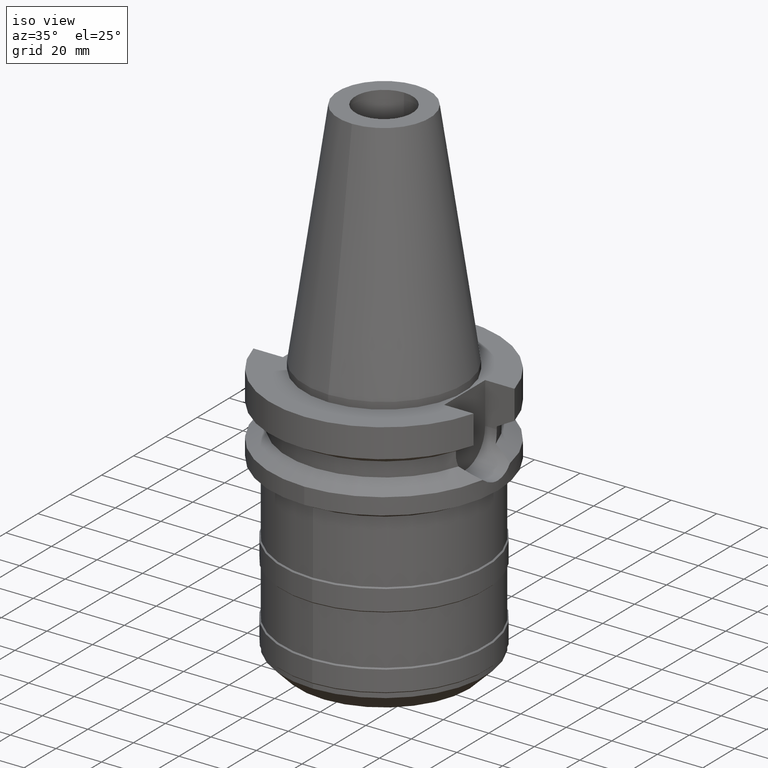
[diagram: clean part render]
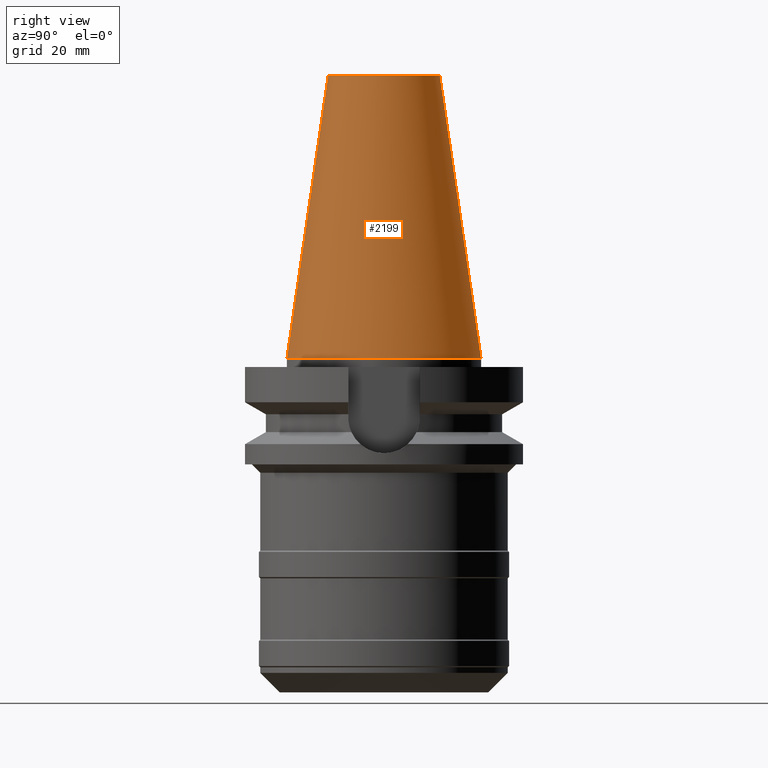
[diagram: tour spotlight — one face highlighted and labeled with its STEP entity id]
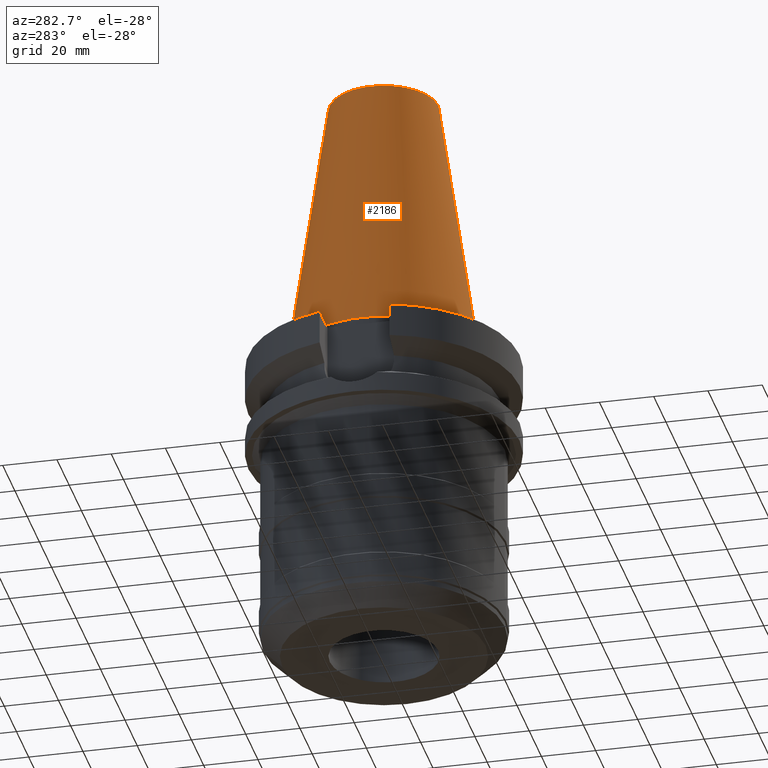
[diagram: tour spotlight — one face highlighted and labeled with its STEP entity id]
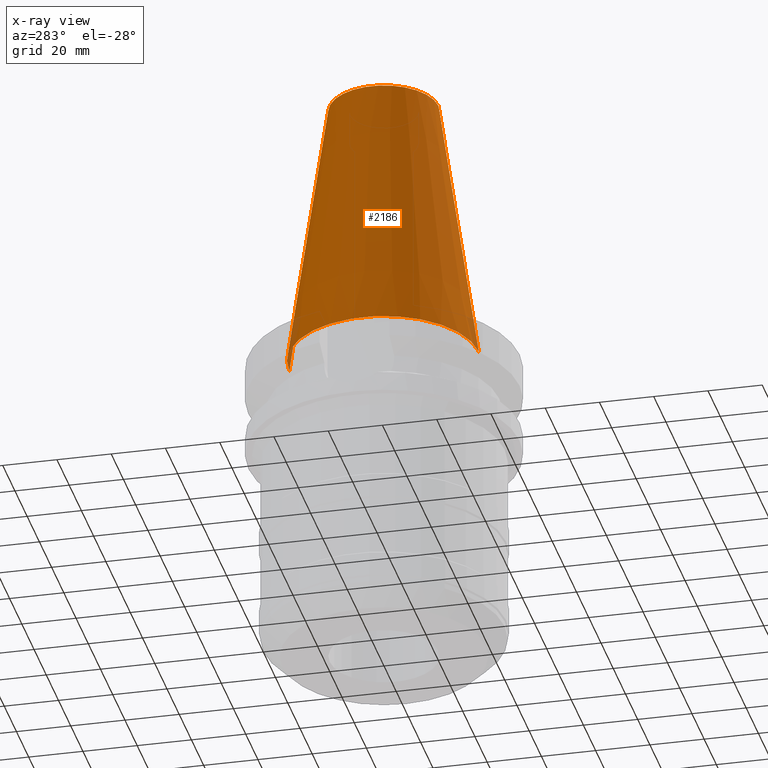
[diagram: x-ray of the same camera — body ghosted, this tour face saturated]
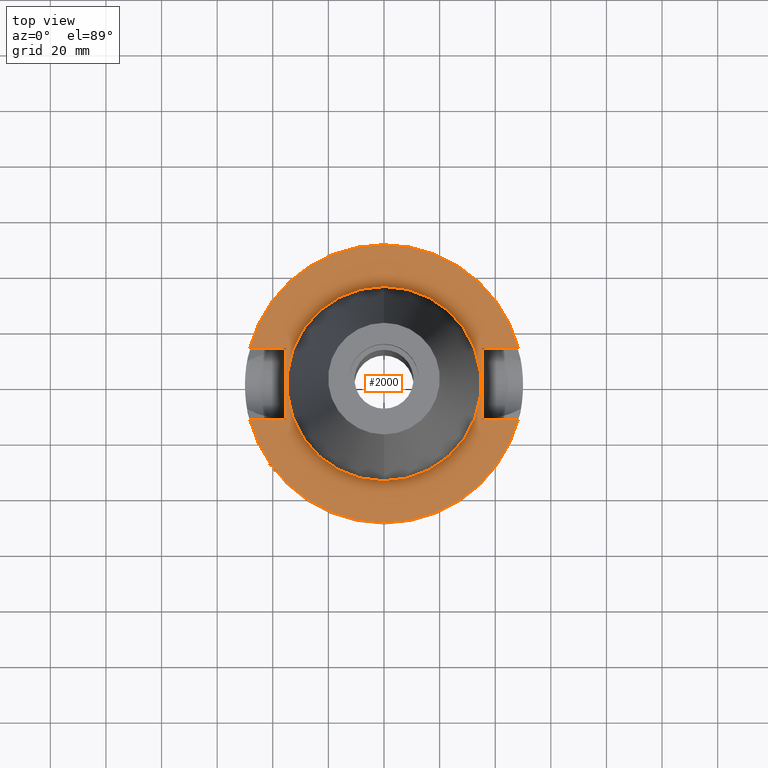
[diagram: tour spotlight — one face highlighted and labeled with its STEP entity id]
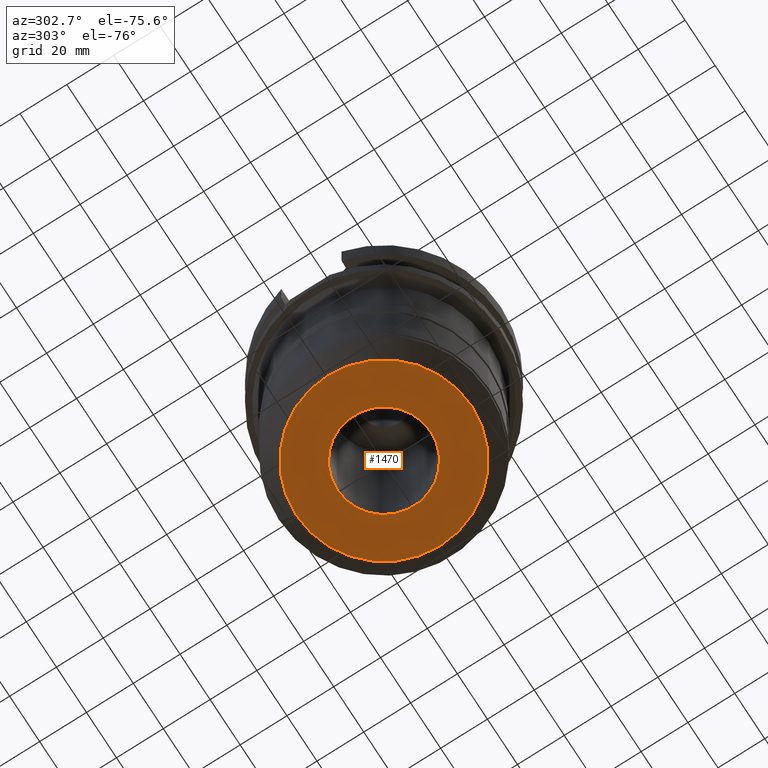
[diagram: tour spotlight — one face highlighted and labeled with its STEP entity id]
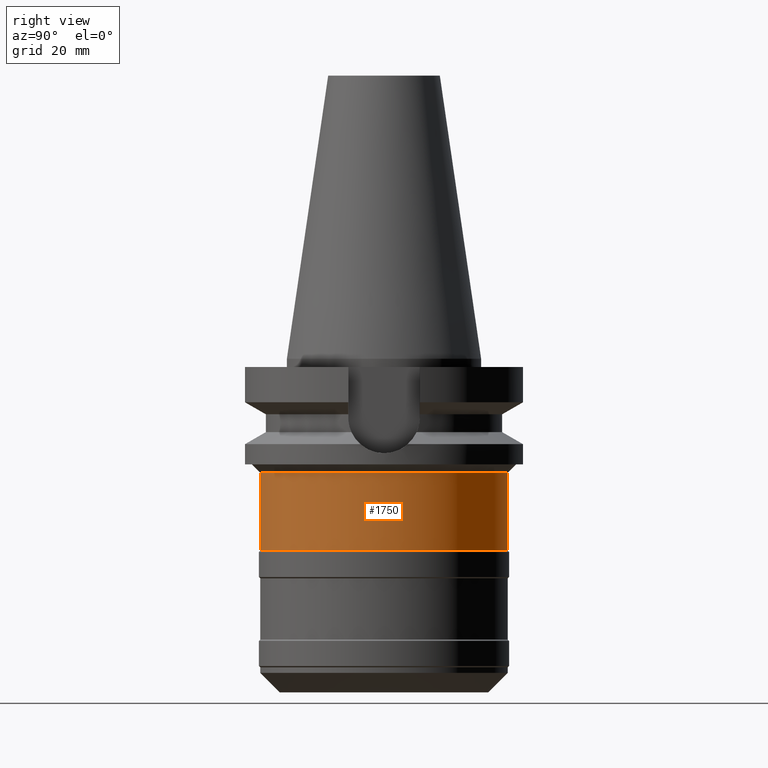
[diagram: tour spotlight — one face highlighted and labeled with its STEP entity id]
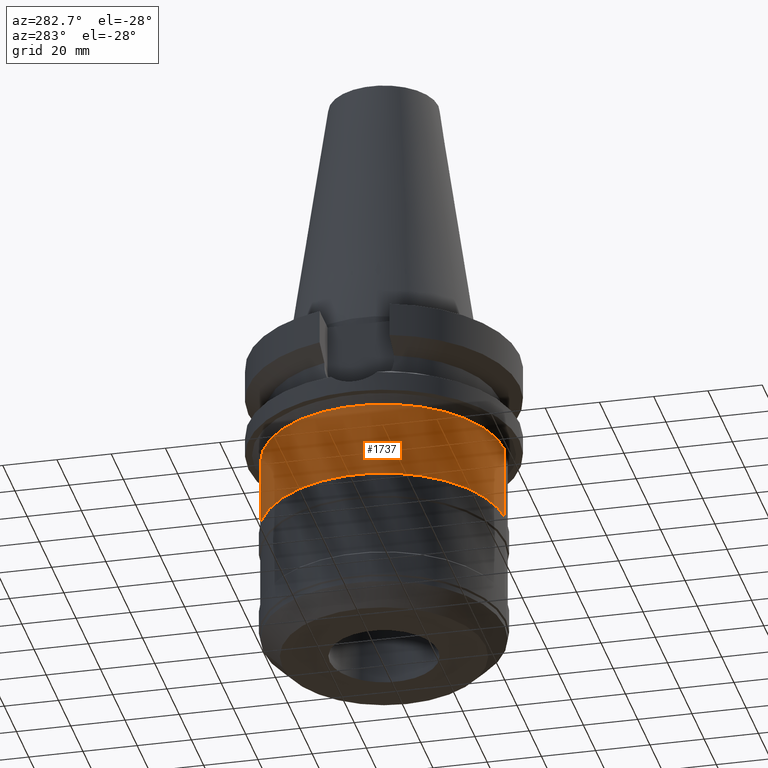
[diagram: tour spotlight — one face highlighted and labeled with its STEP entity id]
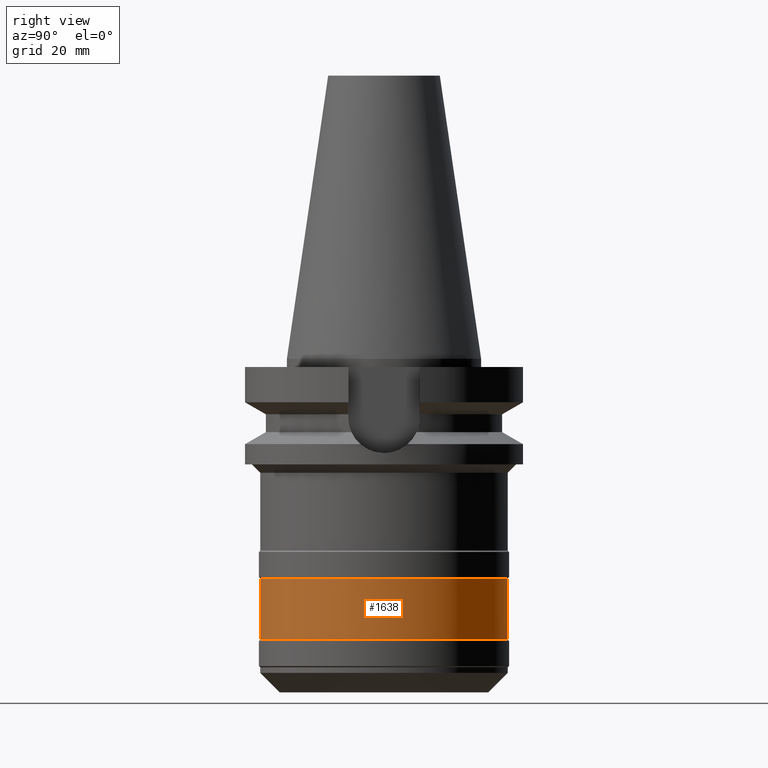
[diagram: tour spotlight — one face highlighted and labeled with its STEP entity id]
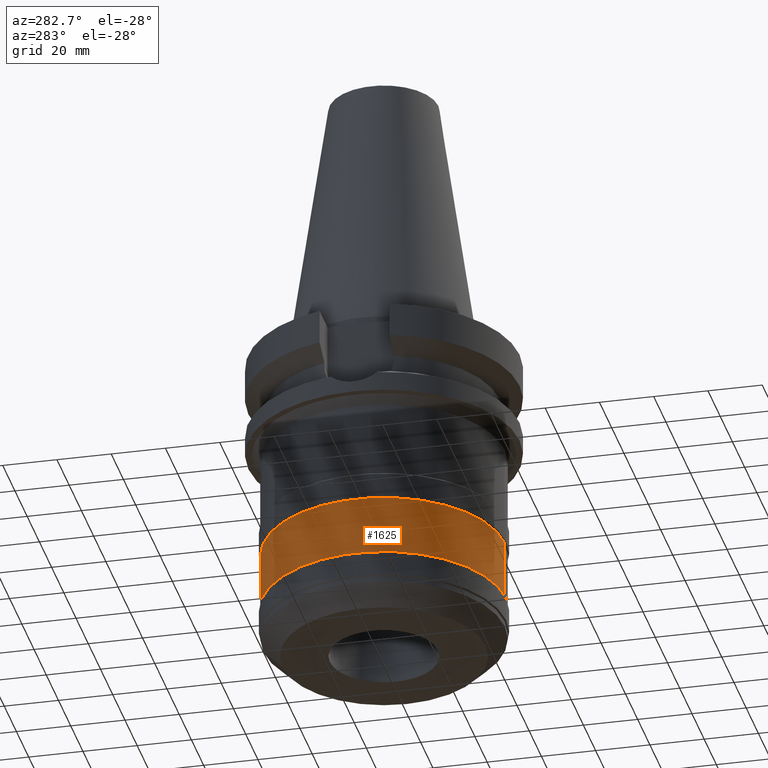
[diagram: tour spotlight — one face highlighted and labeled with its STEP entity id]
A machine part: a face-by-face anatomy tour. The part has 58 B-rep faces; the first image is the clean iso view, then the 8 largest visible faces are spotlighted one at a time (largest first), each with its STEP entity span.

Face 1 — right view, entity #2199. In plain terms, the highlighted conical surface has half-angle 8.297 deg.
Definition (entity closure, byte-faithful):
#1078=DIRECTION('',(0.E0,-1.443043893539E-1,-9.895333461856E-1));
#1079=VECTOR('',#1078,1.028767755957E2);
#1080=CARTESIAN_POINT('',(0.E0,-2.007942971896E1,1.018E2));
#1081=LINE('',#1080,#1079);
#1093=DIRECTION('',(0.E0,1.443043893539E-1,-9.895333461856E-1));
#1094=VECTOR('',#1093,1.028767755957E2);
#1095=CARTESIAN_POINT('',(0.E0,2.007942971896E1,1.018E2));
#1096=LINE('',#1095,#1094);
#1100=CARTESIAN_POINT('',(0.E0,1.847992019913E-14,3.979039320257E-13));
#1101=DIRECTION('',(0.E0,0.E0,-1.E0));
#1102=DIRECTION('',(0.E0,1.E0,0.E0));
#1103=AXIS2_PLACEMENT_3D('',#1100,#1101,#1102);
#1116=CARTESIAN_POINT('',(0.E0,1.847992019913E-14,1.018E2));
#1117=DIRECTION('',(0.E0,0.E0,-1.E0));
#1118=DIRECTION('',(0.E0,1.E0,0.E0));
#1119=AXIS2_PLACEMENT_3D('',#1116,#1117,#1118);
#1293=CARTESIAN_POINT('',(0.E0,3.4925E1,4.902744876745E-13));
#1294=VERTEX_POINT('',#1293);
#1295=CARTESIAN_POINT('',(0.E0,-3.4925E1,4.902744876745E-13));
#1296=VERTEX_POINT('',#1295);
#1297=CARTESIAN_POINT('',(0.E0,2.007942971896E1,1.018E2));
#1298=VERTEX_POINT('',#1297);
#1299=CARTESIAN_POINT('',(0.E0,-2.007942971896E1,1.018E2));
#1300=VERTEX_POINT('',#1299);
#2187=CARTESIAN_POINT('',(0.E0,1.847992019913E-14,5.09E1));
#2188=DIRECTION('',(0.E0,0.E0,-1.E0));
#2189=DIRECTION('',(0.E0,-1.E0,0.E0));
#2190=AXIS2_PLACEMENT_3D('',#2187,#2188,#2189);
#2191=CONICAL_SURFACE('',#2190,2.750221485948E1,8.297E0);
#2192=ORIENTED_EDGE('',*,*,#2177,.T.);
#2193=ORIENTED_EDGE('',*,*,#2154,.T.);
#2194=ORIENTED_EDGE('',*,*,#2181,.F.);
#2196=ORIENTED_EDGE('',*,*,#2195,.F.);
#2197=EDGE_LOOP('',(#2192,#2193,#2194,#2196));
#2198=FACE_OUTER_BOUND('',#2197,.F.);
#1104=CIRCLE('',#1103,3.4925E1);
#1120=CIRCLE('',#1119,2.007942971896E1);
#2154=EDGE_CURVE('',#1294,#1296,#1104,.T.);
#2177=EDGE_CURVE('',#1298,#1294,#1096,.T.);
#2181=EDGE_CURVE('',#1300,#1296,#1081,.T.);
#2195=EDGE_CURVE('',#1298,#1300,#1120,.T.);
#2199=ADVANCED_FACE('',(#2198),#2191,.T.);

Face 2 — auxiliary view, entity #2186. An x-ray twin of the same camera follows (body ghosted, this face saturated) — the face is partly hidden behind the body. In plain terms, the highlighted conical surface has half-angle 8.297 deg.
Definition (entity closure, byte-faithful):
#1078=DIRECTION('',(0.E0,-1.443043893539E-1,-9.895333461856E-1));
#1079=VECTOR('',#1078,1.028767755957E2);
#1080=CARTESIAN_POINT('',(0.E0,-2.007942971896E1,1.018E2));
#1081=LINE('',#1080,#1079);
#1085=CARTESIAN_POINT('',(0.E0,1.847992019913E-14,3.979039320257E-13));
#1086=DIRECTION('',(0.E0,0.E0,-1.E0));
#1087=DIRECTION('',(0.E0,-1.E0,0.E0));
#1088=AXIS2_PLACEMENT_3D('',#1085,#1086,#1087);
#1093=DIRECTION('',(0.E0,1.443043893539E-1,-9.895333461856E-1));
#1094=VECTOR('',#1093,1.028767755957E2);
#1095=CARTESIAN_POINT('',(0.E0,2.007942971896E1,1.018E2));
#1096=LINE('',#1095,#1094);
#1108=CARTESIAN_POINT('',(0.E0,1.847992019913E-14,1.018E2));
#1109=DIRECTION('',(0.E0,0.E0,-1.E0));
#1110=DIRECTION('',(0.E0,-1.E0,0.E0));
#1111=AXIS2_PLACEMENT_3D('',#1108,#1109,#1110);
#1293=CARTESIAN_POINT('',(0.E0,3.4925E1,4.902744876745E-13));
#1294=VERTEX_POINT('',#1293);
#1295=CARTESIAN_POINT('',(0.E0,-3.4925E1,4.902744876745E-13));
#1296=VERTEX_POINT('',#1295);
#1297=CARTESIAN_POINT('',(0.E0,2.007942971896E1,1.018E2));
#1298=VERTEX_POINT('',#1297);
#1299=CARTESIAN_POINT('',(0.E0,-2.007942971896E1,1.018E2));
#1300=VERTEX_POINT('',#1299);
#2172=CARTESIAN_POINT('',(0.E0,1.847992019913E-14,5.09E1));
#2173=DIRECTION('',(0.E0,0.E0,-1.E0));
#2174=DIRECTION('',(0.E0,-1.E0,0.E0));
#2175=AXIS2_PLACEMENT_3D('',#2172,#2173,#2174);
#2176=CONICAL_SURFACE('',#2175,2.750221485948E1,8.297E0);
#2178=ORIENTED_EDGE('',*,*,#2177,.F.);
#2180=ORIENTED_EDGE('',*,*,#2179,.F.);
#2182=ORIENTED_EDGE('',*,*,#2181,.T.);
#2183=ORIENTED_EDGE('',*,*,#2165,.T.);
#2184=EDGE_LOOP('',(#2178,#2180,#2182,#2183));
#2185=FACE_OUTER_BOUND('',#2184,.F.);
#1089=CIRCLE('',#1088,3.4925E1);
#1112=CIRCLE('',#1111,2.007942971896E1);
#2165=EDGE_CURVE('',#1296,#1294,#1089,.T.);
#2177=EDGE_CURVE('',#1298,#1294,#1096,.T.);
#2179=EDGE_CURVE('',#1300,#1298,#1112,.T.);
#2181=EDGE_CURVE('',#1300,#1296,#1081,.T.);
#2186=ADVANCED_FACE('',(#2185),#2176,.T.);

Face 3 — top view, entity #2000. In plain terms, the highlighted planar face has unit normal (0, 0, -1).
Definition (entity closure, byte-faithful):
#748=DIRECTION('',(1.E0,0.E0,0.E0));
#749=VECTOR('',#748,1.292057015392E1);
#750=CARTESIAN_POINT('',(3.54E1,1.285E1,-3.E0));
#751=LINE('',#750,#749);
#795=DIRECTION('',(0.E0,1.E0,0.E0));
#796=VECTOR('',#795,2.57E1);
#797=CARTESIAN_POINT('',(-3.54E1,-1.285E1,-3.E0));
#798=LINE('',#797,#796);
#802=DIRECTION('',(-1.E0,0.E0,0.E0));
#803=VECTOR('',#802,1.292057015392E1);
#804=CARTESIAN_POINT('',(-3.54E1,1.285E1,-3.E0));
#805=LINE('',#804,#803);
#809=CARTESIAN_POINT('',(0.E0,2.607150570705E-14,-3.E0));
#810=DIRECTION('',(0.E0,0.E0,-1.E0));
#811=DIRECTION('',(-9.664114030784E-1,2.57E-1,0.E0));
#812=AXIS2_PLACEMENT_3D('',#809,#810,#811);
#817=CARTESIAN_POINT('',(0.E0,2.607150570705E-14,-3.E0));
#818=DIRECTION('',(0.E0,0.E0,-1.E0));
#819=DIRECTION('',(0.E0,1.E0,0.E0));
#820=AXIS2_PLACEMENT_3D('',#817,#818,#819);
#825=DIRECTION('',(0.E0,-1.E0,0.E0));
#826=VECTOR('',#825,2.57E1);
#827=CARTESIAN_POINT('',(3.54E1,1.285E1,-3.E0));
#828=LINE('',#827,#826);
#832=DIRECTION('',(1.E0,0.E0,0.E0));
#833=VECTOR('',#832,1.292057015392E1);
#834=CARTESIAN_POINT('',(3.54E1,-1.285E1,-3.E0));
#835=LINE('',#834,#833);
#839=CARTESIAN_POINT('',(0.E0,2.607150570705E-14,-3.E0));
#840=DIRECTION('',(0.E0,0.E0,-1.E0));
#841=DIRECTION('',(9.664114030784E-1,-2.57E-1,0.E0));
#842=AXIS2_PLACEMENT_3D('',#839,#840,#841);
#847=CARTESIAN_POINT('',(0.E0,2.607150570705E-14,-3.E0));
#848=DIRECTION('',(0.E0,0.E0,-1.E0));
#849=DIRECTION('',(0.E0,-1.E0,0.E0));
#850=AXIS2_PLACEMENT_3D('',#847,#848,#849);
#855=CARTESIAN_POINT('',(0.E0,2.607150570705E-14,-3.E0));
#856=DIRECTION('',(0.E0,0.E0,1.E0));
#857=DIRECTION('',(0.E0,-1.E0,0.E0));
#858=AXIS2_PLACEMENT_3D('',#855,#856,#857);
#863=CARTESIAN_POINT('',(0.E0,2.607150570705E-14,-3.E0));
#864=DIRECTION('',(0.E0,0.E0,1.E0));
#865=DIRECTION('',(0.E0,1.E0,0.E0));
#866=AXIS2_PLACEMENT_3D('',#863,#864,#865);
#901=DIRECTION('',(-1.E0,0.E0,0.E0));
#902=VECTOR('',#901,1.292057015392E1);
#903=CARTESIAN_POINT('',(-3.54E1,-1.285E1,-3.E0));
#904=LINE('',#903,#902);
#1267=CARTESIAN_POINT('',(-3.54E1,-1.285E1,-3.E0));
#1268=VERTEX_POINT('',#1267);
#1269=CARTESIAN_POINT('',(-4.832057015392E1,-1.285E1,-3.E0));
#1270=VERTEX_POINT('',#1269);
#1273=CARTESIAN_POINT('',(-3.54E1,1.285E1,-3.E0));
#1274=VERTEX_POINT('',#1273);
#1275=CARTESIAN_POINT('',(-4.832057015392E1,1.285E1,-3.E0));
#1276=VERTEX_POINT('',#1275);
#1277=CARTESIAN_POINT('',(-1.065814103640E-14,5.E1,-3.E0));
#1278=CARTESIAN_POINT('',(4.832057015392E1,1.285E1,-3.E0));
#1279=VERTEX_POINT('',#1277);
#1280=VERTEX_POINT('',#1278);
#1281=CARTESIAN_POINT('',(3.54E1,1.285E1,-3.E0));
#1282=VERTEX_POINT('',#1281);
#1283=CARTESIAN_POINT('',(3.54E1,-1.285E1,-3.E0));
#1284=VERTEX_POINT('',#1283);
#1285=CARTESIAN_POINT('',(4.832057015392E1,-1.285E1,-3.E0));
#1286=VERTEX_POINT('',#1285);
#1287=CARTESIAN_POINT('',(1.065814103640E-14,-5.E1,-3.E0));
#1288=VERTEX_POINT('',#1287);
#1289=CARTESIAN_POINT('',(0.E0,-3.4925E1,-3.E0));
#1290=CARTESIAN_POINT('',(0.E0,3.4925E1,-3.E0));
#1291=VERTEX_POINT('',#1289);
#1292=VERTEX_POINT('',#1290);
#1969=CARTESIAN_POINT('',(0.E0,1.187907395173E-14,-3.E0));
#1970=DIRECTION('',(0.E0,0.E0,-1.E0));
#1971=DIRECTION('',(0.E0,-1.E0,0.E0));
#1972=AXIS2_PLACEMENT_3D('',#1969,#1970,#1971);
#1973=PLANE('',#1972);
#1975=ORIENTED_EDGE('',*,*,#1974,.T.);
#1977=ORIENTED_EDGE('',*,*,#1976,.T.);
#1979=ORIENTED_EDGE('',*,*,#1978,.T.);
#1981=ORIENTED_EDGE('',*,*,#1980,.T.);
#1982=ORIENTED_EDGE('',*,*,#1945,.F.);
#1983=ORIENTED_EDGE('',*,*,#1959,.T.);
#1985=ORIENTED_EDGE('',*,*,#1984,.T.);
#1987=ORIENTED_EDGE('',*,*,#1986,.T.);
#1989=ORIENTED_EDGE('',*,*,#1988,.T.);
#1991=ORIENTED_EDGE('',*,*,#1990,.F.);
#1992=EDGE_LOOP('',(#1975,#1977,#1979,#1981,#1982,#1983,#1985,#1987,#1989,
#1991));
#1993=FACE_OUTER_BOUND('',#1992,.F.);
#1995=ORIENTED_EDGE('',*,*,#1994,.T.);
#1997=ORIENTED_EDGE('',*,*,#1996,.T.);
#1998=EDGE_LOOP('',(#1995,#1997));
#1999=FACE_BOUND('',#1998,.F.);
#813=CIRCLE('',#812,5.E1);
#821=CIRCLE('',#820,5.E1);
#843=CIRCLE('',#842,5.E1);
#851=CIRCLE('',#850,5.E1);
#859=CIRCLE('',#858,3.4925E1);
#867=CIRCLE('',#866,3.4925E1);
#1945=EDGE_CURVE('',#1282,#1280,#751,.T.);
#1959=EDGE_CURVE('',#1282,#1284,#828,.T.);
#1974=EDGE_CURVE('',#1268,#1274,#798,.T.);
#1976=EDGE_CURVE('',#1274,#1276,#805,.T.);
#1978=EDGE_CURVE('',#1276,#1279,#813,.T.);
#1980=EDGE_CURVE('',#1279,#1280,#821,.T.);
#1984=EDGE_CURVE('',#1284,#1286,#835,.T.);
#1986=EDGE_CURVE('',#1286,#1288,#843,.T.);
#1988=EDGE_CURVE('',#1288,#1270,#851,.T.);
#1990=EDGE_CURVE('',#1268,#1270,#904,.T.);
#1994=EDGE_CURVE('',#1291,#1292,#859,.T.);
#1996=EDGE_CURVE('',#1292,#1291,#867,.T.);
#2000=ADVANCED_FACE('',(#1993,#1999),#1973,.F.);

Face 4 — auxiliary view, entity #1470. In plain terms, the highlighted planar face has unit normal (0, 0, -1).
Definition (entity closure, byte-faithful):
#154=CARTESIAN_POINT('',(0.E0,0.E0,-1.2E2));
#155=DIRECTION('',(0.E0,0.E0,1.E0));
#156=DIRECTION('',(0.E0,-1.E0,0.E0));
#157=AXIS2_PLACEMENT_3D('',#154,#155,#156);
#162=CARTESIAN_POINT('',(0.E0,0.E0,-1.2E2));
#163=DIRECTION('',(0.E0,0.E0,1.E0));
#164=DIRECTION('',(0.E0,1.E0,0.E0));
#165=AXIS2_PLACEMENT_3D('',#162,#163,#164);
#170=CARTESIAN_POINT('',(0.E0,2.607150570705E-14,-1.2E2));
#171=DIRECTION('',(0.E0,0.E0,-1.E0));
#172=DIRECTION('',(0.E0,-1.E0,0.E0));
#173=AXIS2_PLACEMENT_3D('',#170,#171,#172);
#178=CARTESIAN_POINT('',(0.E0,2.607150570705E-14,-1.2E2));
#179=DIRECTION('',(0.E0,0.E0,-1.E0));
#180=DIRECTION('',(0.E0,1.E0,0.E0));
#181=AXIS2_PLACEMENT_3D('',#178,#179,#180);
#1164=CARTESIAN_POINT('',(0.E0,2.E1,-1.2E2));
#1165=VERTEX_POINT('',#1164);
#1166=CARTESIAN_POINT('',(0.E0,-2.E1,-1.2E2));
#1167=VERTEX_POINT('',#1166);
#1168=CARTESIAN_POINT('',(0.E0,-3.75E1,-1.2E2));
#1169=CARTESIAN_POINT('',(0.E0,3.75E1,-1.2E2));
#1170=VERTEX_POINT('',#1168);
#1171=VERTEX_POINT('',#1169);
#1455=CARTESIAN_POINT('',(0.E0,0.E0,-1.2E2));
#1456=DIRECTION('',(0.E0,0.E0,-1.E0));
#1457=DIRECTION('',(0.E0,-1.E0,0.E0));
#1458=AXIS2_PLACEMENT_3D('',#1455,#1456,#1457);
#1459=PLANE('',#1458);
#1461=ORIENTED_EDGE('',*,*,#1460,.T.);
#1463=ORIENTED_EDGE('',*,*,#1462,.T.);
#1464=EDGE_LOOP('',(#1461,#1463));
#1465=FACE_OUTER_BOUND('',#1464,.F.);
#1466=ORIENTED_EDGE('',*,*,#1448,.T.);
#1467=ORIENTED_EDGE('',*,*,#1437,.T.);
#1468=EDGE_LOOP('',(#1466,#1467));
#1469=FACE_BOUND('',#1468,.F.);
#158=CIRCLE('',#157,3.75E1);
#166=CIRCLE('',#165,3.75E1);
#174=CIRCLE('',#173,2.E1);
#182=CIRCLE('',#181,2.E1);
#1437=EDGE_CURVE('',#1165,#1167,#182,.T.);
#1448=EDGE_CURVE('',#1167,#1165,#174,.T.);
#1460=EDGE_CURVE('',#1170,#1171,#158,.T.);
#1462=EDGE_CURVE('',#1171,#1170,#166,.T.);
#1470=ADVANCED_FACE('',(#1465,#1469),#1459,.T.);

Face 5 — right view, entity #1750. In plain terms, the highlighted cylindrical surface (partial cylindrical patch) has radius 44.5 mm, axis along (0, 0, -1).
Definition (entity closure, byte-faithful):
#425=CARTESIAN_POINT('',(0.E0,0.E0,-6.9E1));
#426=DIRECTION('',(0.E0,0.E0,1.E0));
#427=DIRECTION('',(0.E0,-1.E0,0.E0));
#428=AXIS2_PLACEMENT_3D('',#425,#426,#427);
#456=DIRECTION('',(0.E0,0.E0,-1.E0));
#457=VECTOR('',#456,2.8E1);
#458=CARTESIAN_POINT('',(0.E0,-4.45E1,-4.1E1));
#459=LINE('',#458,#457);
#463=DIRECTION('',(0.E0,0.E0,-1.E0));
#464=VECTOR('',#463,2.8E1);
#465=CARTESIAN_POINT('',(0.E0,4.45E1,-4.1E1));
#466=LINE('',#465,#464);
#477=CARTESIAN_POINT('',(0.E0,0.E0,-4.1E1));
#478=DIRECTION('',(0.E0,0.E0,-1.E0));
#479=DIRECTION('',(0.E0,1.E0,0.E0));
#480=AXIS2_PLACEMENT_3D('',#477,#478,#479);
#1204=CARTESIAN_POINT('',(0.E0,4.45E1,-6.9E1));
#1205=VERTEX_POINT('',#1204);
#1206=CARTESIAN_POINT('',(0.E0,-4.45E1,-6.9E1));
#1207=VERTEX_POINT('',#1206);
#1208=CARTESIAN_POINT('',(0.E0,4.45E1,-4.1E1));
#1209=VERTEX_POINT('',#1208);
#1210=CARTESIAN_POINT('',(0.E0,-4.45E1,-4.1E1));
#1211=VERTEX_POINT('',#1210);
#1738=CARTESIAN_POINT('',(0.E0,2.607150570705E-14,1.1289E2));
#1739=DIRECTION('',(0.E0,0.E0,-1.E0));
#1740=DIRECTION('',(0.E0,-1.E0,0.E0));
#1741=AXIS2_PLACEMENT_3D('',#1738,#1739,#1740);
#1742=CYLINDRICAL_SURFACE('',#1741,4.45E1);
#1743=ORIENTED_EDGE('',*,*,#1728,.T.);
#1744=ORIENTED_EDGE('',*,*,#1705,.F.);
#1745=ORIENTED_EDGE('',*,*,#1732,.F.);
#1747=ORIENTED_EDGE('',*,*,#1746,.F.);
#1748=EDGE_LOOP('',(#1743,#1744,#1745,#1747));
#1749=FACE_OUTER_BOUND('',#1748,.F.);
#429=CIRCLE('',#428,4.45E1);
#481=CIRCLE('',#480,4.45E1);
#1705=EDGE_CURVE('',#1207,#1205,#429,.T.);
#1728=EDGE_CURVE('',#1209,#1205,#466,.T.);
#1732=EDGE_CURVE('',#1211,#1207,#459,.T.);
#1746=EDGE_CURVE('',#1209,#1211,#481,.T.);
#1750=ADVANCED_FACE('',(#1749),#1742,.T.);

Face 6 — auxiliary view, entity #1737. In plain terms, the highlighted cylindrical surface (partial cylindrical patch) has radius 44.5 mm, axis along (0, 0, -1).
Definition (entity closure, byte-faithful):
#433=CARTESIAN_POINT('',(0.E0,0.E0,-6.9E1));
#434=DIRECTION('',(0.E0,0.E0,1.E0));
#435=DIRECTION('',(0.E0,1.E0,0.E0));
#436=AXIS2_PLACEMENT_3D('',#433,#434,#435);
#456=DIRECTION('',(0.E0,0.E0,-1.E0));
#457=VECTOR('',#456,2.8E1);
#458=CARTESIAN_POINT('',(0.E0,-4.45E1,-4.1E1));
#459=LINE('',#458,#457);
#463=DIRECTION('',(0.E0,0.E0,-1.E0));
#464=VECTOR('',#463,2.8E1);
#465=CARTESIAN_POINT('',(0.E0,4.45E1,-4.1E1));
#466=LINE('',#465,#464);
#492=CARTESIAN_POINT('',(0.E0,0.E0,-4.1E1));
#493=DIRECTION('',(0.E0,0.E0,-1.E0));
#494=DIRECTION('',(0.E0,-1.E0,0.E0));
#495=AXIS2_PLACEMENT_3D('',#492,#493,#494);
#1204=CARTESIAN_POINT('',(0.E0,4.45E1,-6.9E1));
#1205=VERTEX_POINT('',#1204);
#1206=CARTESIAN_POINT('',(0.E0,-4.45E1,-6.9E1));
#1207=VERTEX_POINT('',#1206);
#1208=CARTESIAN_POINT('',(0.E0,4.45E1,-4.1E1));
#1209=VERTEX_POINT('',#1208);
#1210=CARTESIAN_POINT('',(0.E0,-4.45E1,-4.1E1));
#1211=VERTEX_POINT('',#1210);
#1723=CARTESIAN_POINT('',(0.E0,2.607150570705E-14,1.1289E2));
#1724=DIRECTION('',(0.E0,0.E0,-1.E0));
#1725=DIRECTION('',(0.E0,-1.E0,0.E0));
#1726=AXIS2_PLACEMENT_3D('',#1723,#1724,#1725);
#1727=CYLINDRICAL_SURFACE('',#1726,4.45E1);
#1729=ORIENTED_EDGE('',*,*,#1728,.F.);
#1731=ORIENTED_EDGE('',*,*,#1730,.F.);
#1733=ORIENTED_EDGE('',*,*,#1732,.T.);
#1734=ORIENTED_EDGE('',*,*,#1716,.F.);
#1735=EDGE_LOOP('',(#1729,#1731,#1733,#1734));
#1736=FACE_OUTER_BOUND('',#1735,.F.);
#437=CIRCLE('',#436,4.45E1);
#496=CIRCLE('',#495,4.45E1);
#1716=EDGE_CURVE('',#1205,#1207,#437,.T.);
#1728=EDGE_CURVE('',#1209,#1205,#466,.T.);
#1730=EDGE_CURVE('',#1211,#1209,#496,.T.);
#1732=EDGE_CURVE('',#1211,#1207,#459,.T.);
#1737=ADVANCED_FACE('',(#1736),#1727,.T.);

Face 7 — right view, entity #1638. In plain terms, the highlighted cylindrical surface (partial cylindrical patch) has radius 44.5 mm, axis along (0, 0, -1).
Definition (entity closure, byte-faithful):
#305=CARTESIAN_POINT('',(0.E0,0.E0,-1.01E2));
#306=DIRECTION('',(0.E0,0.E0,1.E0));
#307=DIRECTION('',(0.E0,-1.E0,0.E0));
#308=AXIS2_PLACEMENT_3D('',#305,#306,#307);
#336=DIRECTION('',(0.E0,0.E0,-1.E0));
#337=VECTOR('',#336,2.2E1);
#338=CARTESIAN_POINT('',(0.E0,-4.45E1,-7.9E1));
#339=LINE('',#338,#337);
#343=DIRECTION('',(0.E0,0.E0,-1.E0));
#344=VECTOR('',#343,2.2E1);
#345=CARTESIAN_POINT('',(0.E0,4.45E1,-7.9E1));
#346=LINE('',#345,#344);
#357=CARTESIAN_POINT('',(0.E0,0.E0,-7.9E1));
#358=DIRECTION('',(0.E0,0.E0,-1.E0));
#359=DIRECTION('',(0.E0,1.E0,0.E0));
#360=AXIS2_PLACEMENT_3D('',#357,#358,#359);
#1188=CARTESIAN_POINT('',(0.E0,4.45E1,-1.01E2));
#1189=VERTEX_POINT('',#1188);
#1190=CARTESIAN_POINT('',(0.E0,-4.45E1,-1.01E2));
#1191=VERTEX_POINT('',#1190);
#1192=CARTESIAN_POINT('',(0.E0,4.45E1,-7.9E1));
#1193=VERTEX_POINT('',#1192);
#1194=CARTESIAN_POINT('',(0.E0,-4.45E1,-7.9E1));
#1195=VERTEX_POINT('',#1194);
#1626=CARTESIAN_POINT('',(0.E0,2.607150570705E-14,1.1289E2));
#1627=DIRECTION('',(0.E0,0.E0,-1.E0));
#1628=DIRECTION('',(0.E0,-1.E0,0.E0));
#1629=AXIS2_PLACEMENT_3D('',#1626,#1627,#1628);
#1630=CYLINDRICAL_SURFACE('',#1629,4.45E1);
#1631=ORIENTED_EDGE('',*,*,#1616,.T.);
#1632=ORIENTED_EDGE('',*,*,#1593,.F.);
#1633=ORIENTED_EDGE('',*,*,#1620,.F.);
#1635=ORIENTED_EDGE('',*,*,#1634,.F.);
#1636=EDGE_LOOP('',(#1631,#1632,#1633,#1635));
#1637=FACE_OUTER_BOUND('',#1636,.F.);
#309=CIRCLE('',#308,4.45E1);
#361=CIRCLE('',#360,4.45E1);
#1593=EDGE_CURVE('',#1191,#1189,#309,.T.);
#1616=EDGE_CURVE('',#1193,#1189,#346,.T.);
#1620=EDGE_CURVE('',#1195,#1191,#339,.T.);
#1634=EDGE_CURVE('',#1193,#1195,#361,.T.);
#1638=ADVANCED_FACE('',(#1637),#1630,.T.);

Face 8 — auxiliary view, entity #1625. In plain terms, the highlighted cylindrical surface (partial cylindrical patch) has radius 44.5 mm, axis along (0, 0, -1).
Definition (entity closure, byte-faithful):
#313=CARTESIAN_POINT('',(0.E0,0.E0,-1.01E2));
#314=DIRECTION('',(0.E0,0.E0,1.E0));
#315=DIRECTION('',(0.E0,1.E0,0.E0));
#316=AXIS2_PLACEMENT_3D('',#313,#314,#315);
#336=DIRECTION('',(0.E0,0.E0,-1.E0));
#337=VECTOR('',#336,2.2E1);
#338=CARTESIAN_POINT('',(0.E0,-4.45E1,-7.9E1));
#339=LINE('',#338,#337);
#343=DIRECTION('',(0.E0,0.E0,-1.E0));
#344=VECTOR('',#343,2.2E1);
#345=CARTESIAN_POINT('',(0.E0,4.45E1,-7.9E1));
#346=LINE('',#345,#344);
#388=CARTESIAN_POINT('',(0.E0,0.E0,-7.9E1));
#389=DIRECTION('',(0.E0,0.E0,-1.E0));
#390=DIRECTION('',(0.E0,-1.E0,0.E0));
#391=AXIS2_PLACEMENT_3D('',#388,#389,#390);
#1188=CARTESIAN_POINT('',(0.E0,4.45E1,-1.01E2));
#1189=VERTEX_POINT('',#1188);
#1190=CARTESIAN_POINT('',(0.E0,-4.45E1,-1.01E2));
#1191=VERTEX_POINT('',#1190);
#1192=CARTESIAN_POINT('',(0.E0,4.45E1,-7.9E1));
#1193=VERTEX_POINT('',#1192);
#1194=CARTESIAN_POINT('',(0.E0,-4.45E1,-7.9E1));
#1195=VERTEX_POINT('',#1194);
#1611=CARTESIAN_POINT('',(0.E0,2.607150570705E-14,1.1289E2));
#1612=DIRECTION('',(0.E0,0.E0,-1.E0));
#1613=DIRECTION('',(0.E0,-1.E0,0.E0));
#1614=AXIS2_PLACEMENT_3D('',#1611,#1612,#1613);
#1615=CYLINDRICAL_SURFACE('',#1614,4.45E1);
#1617=ORIENTED_EDGE('',*,*,#1616,.F.);
#1619=ORIENTED_EDGE('',*,*,#1618,.F.);
#1621=ORIENTED_EDGE('',*,*,#1620,.T.);
#1622=ORIENTED_EDGE('',*,*,#1604,.F.);
#1623=EDGE_LOOP('',(#1617,#1619,#1621,#1622));
#1624=FACE_OUTER_BOUND('',#1623,.F.);
#317=CIRCLE('',#316,4.45E1);
#392=CIRCLE('',#391,4.45E1);
#1604=EDGE_CURVE('',#1189,#1191,#317,.T.);
#1616=EDGE_CURVE('',#1193,#1189,#346,.T.);
#1618=EDGE_CURVE('',#1195,#1193,#392,.T.);
#1620=EDGE_CURVE('',#1195,#1191,#339,.T.);
#1625=ADVANCED_FACE('',(#1624),#1615,.T.);